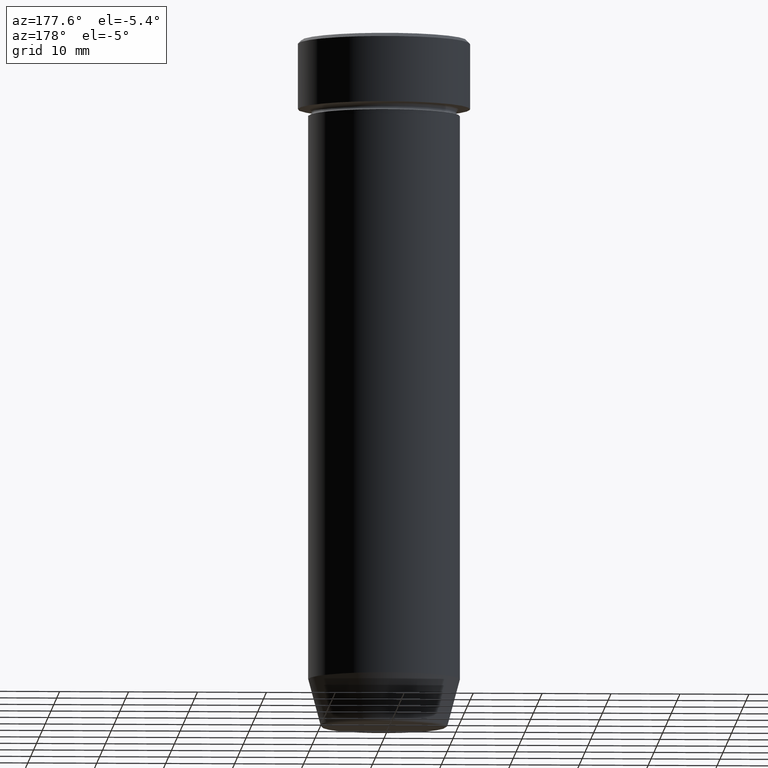
[diagram: clean part render]
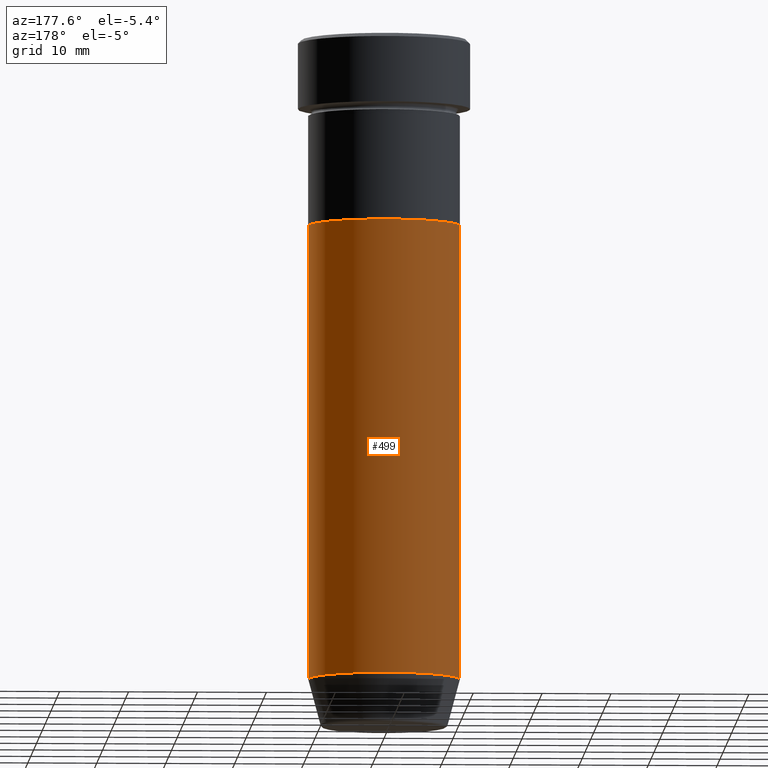
[diagram: same view with one face highlighted and labeled with its STEP entity id]
A machine part, auxiliary view. The second image highlights one B-rep face of the part: STEP entity #499.
In plain terms, the highlighted cylindrical surface (partial cylindrical patch) has radius 11 mm, axis along (-0, -0, 1).
Its self-contained STEP definition (entity closure, byte-faithful):
#9 = VERTEX_POINT ( 'NONE', #152 ) ;
#27 = VECTOR ( 'NONE', #459, 1000.000000000000000 ) ;
#36 = VECTOR ( 'NONE', #210, 1000.000000000000000 ) ;
#62 = CARTESIAN_POINT ( 'NONE',  ( 0.000000000000000000, 0.000000000000000000, 0.000000000000000000 ) ) ;
#92 = VERTEX_POINT ( 'NONE', #525 ) ;
#98 = ORIENTED_EDGE ( 'NONE', *, *, #137, .T. ) ;
#137 = EDGE_CURVE ( 'NONE', #264, #9, #456, .T. ) ;
#151 = DIRECTION ( 'NONE',  ( 1.000000000000000000, 0.000000000000000000, 0.000000000000000000 ) ) ;
#152 = CARTESIAN_POINT ( 'NONE',  ( -11.00000000000000000, 1.347111479062088405E-15, -92.99999999999998579 ) ) ;
#159 = EDGE_CURVE ( 'NONE', #9, #92, #263, .T. ) ;
#170 = CARTESIAN_POINT ( 'NONE',  ( 11.00000000000000000, 0.000000000000000000, -92.99999999999998579 ) ) ;
#187 = EDGE_LOOP ( 'NONE', ( #98, #420, #434, #587 ) ) ;
#208 = DIRECTION ( 'NONE',  ( 1.000000000000000000, 0.000000000000000000, 0.000000000000000000 ) ) ;
#210 = DIRECTION ( 'NONE',  ( -0.000000000000000000, -0.000000000000000000, 1.000000000000000000 ) ) ;
#263 = LINE ( 'NONE', #310, #36 ) ;
#264 = VERTEX_POINT ( 'NONE', #170 ) ;
#310 = CARTESIAN_POINT ( 'NONE',  ( -11.00000000000000000, 1.347111479062088405E-15, 0.000000000000000000 ) ) ;
#313 = CARTESIAN_POINT ( 'NONE',  ( 11.00000000000000000, 0.000000000000000000, 0.000000000000000000 ) ) ;
#327 = CARTESIAN_POINT ( 'NONE',  ( 11.00000000000000000, 0.000000000000000000, -27.00000000000000000 ) ) ;
#337 = EDGE_CURVE ( 'NONE', #264, #591, #586, .T. ) ;
#338 = DIRECTION ( 'NONE',  ( -0.000000000000000000, -0.000000000000000000, 1.000000000000000000 ) ) ;
#360 = AXIS2_PLACEMENT_3D ( 'NONE', #62, #338, #151 ) ;
#385 = CARTESIAN_POINT ( 'NONE',  ( 0.000000000000000000, 0.000000000000000000, -27.00000000000000000 ) ) ;
#395 = DIRECTION ( 'NONE',  ( -0.000000000000000000, -0.000000000000000000, 1.000000000000000000 ) ) ;
#414 = AXIS2_PLACEMENT_3D ( 'NONE', #385, #516, #519 ) ;
#420 = ORIENTED_EDGE ( 'NONE', *, *, #159, .T. ) ;
#434 = ORIENTED_EDGE ( 'NONE', *, *, #492, .F. ) ;
#456 = CIRCLE ( 'NONE', #487, 11.00000000000000000 ) ;
#459 = DIRECTION ( 'NONE',  ( -0.000000000000000000, -0.000000000000000000, 1.000000000000000000 ) ) ;
#486 = CARTESIAN_POINT ( 'NONE',  ( 0.000000000000000000, 0.000000000000000000, -92.99999999999998579 ) ) ;
#487 = AXIS2_PLACEMENT_3D ( 'NONE', #486, #395, #208 ) ;
#492 = EDGE_CURVE ( 'NONE', #591, #92, #502, .T. ) ;
#499 = ADVANCED_FACE ( 'NONE', ( #560 ), #563, .T. ) ;
#502 = CIRCLE ( 'NONE', #414, 11.00000000000000000 ) ;
#516 = DIRECTION ( 'NONE',  ( -0.000000000000000000, -0.000000000000000000, 1.000000000000000000 ) ) ;
#519 = DIRECTION ( 'NONE',  ( 1.000000000000000000, 0.000000000000000000, 0.000000000000000000 ) ) ;
#525 = CARTESIAN_POINT ( 'NONE',  ( -11.00000000000000000, 1.347111479062088405E-15, -27.00000000000000000 ) ) ;
#560 = FACE_OUTER_BOUND ( 'NONE', #187, .T. ) ;
#563 = CYLINDRICAL_SURFACE ( 'NONE', #360, 11.00000000000000000 ) ;
#586 = LINE ( 'NONE', #313, #27 ) ;
#587 = ORIENTED_EDGE ( 'NONE', *, *, #337, .F. ) ;
#591 = VERTEX_POINT ( 'NONE', #327 ) ;